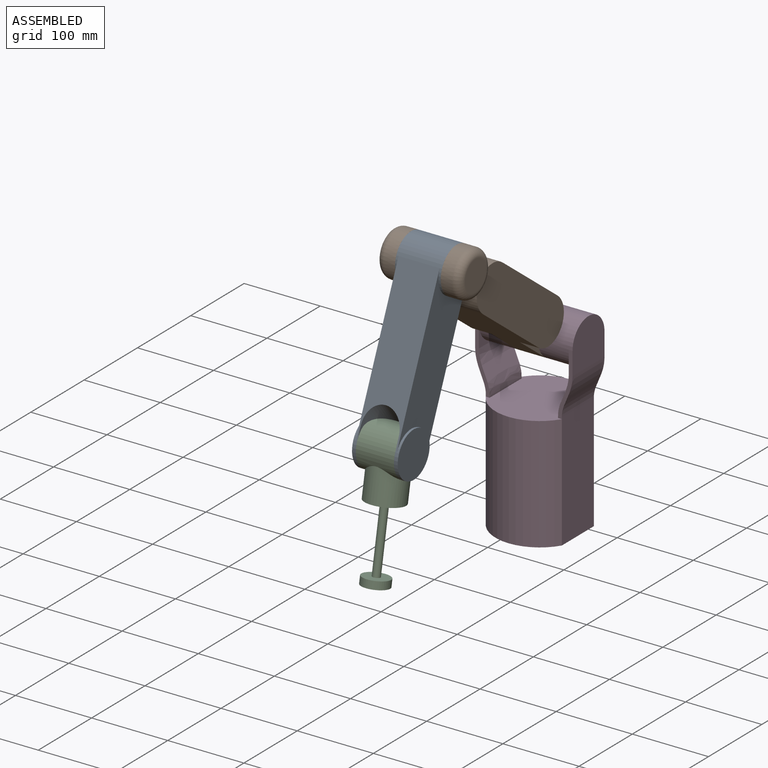
[diagram: assembled view]
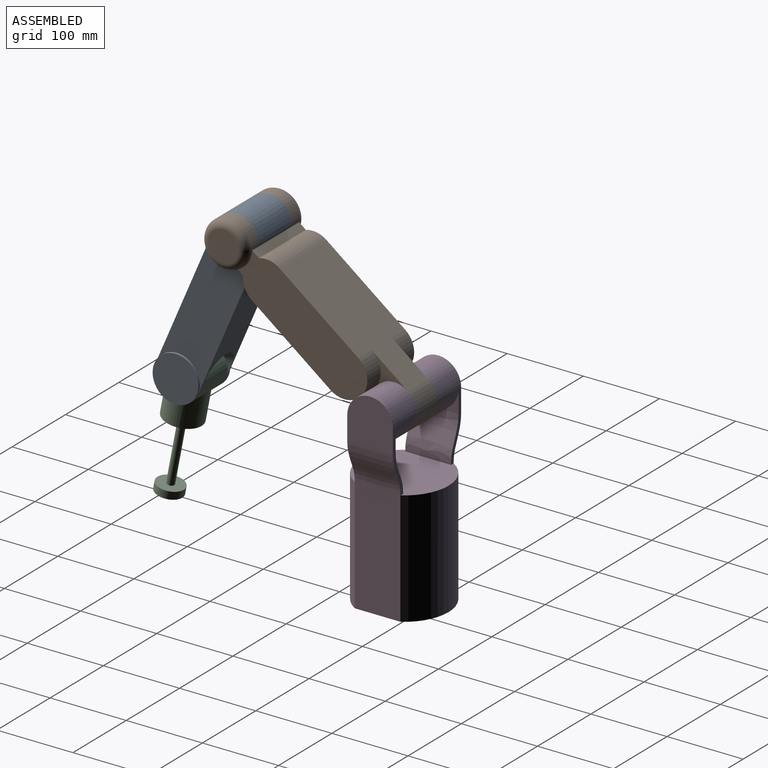
[diagram: assembled view, second angle]
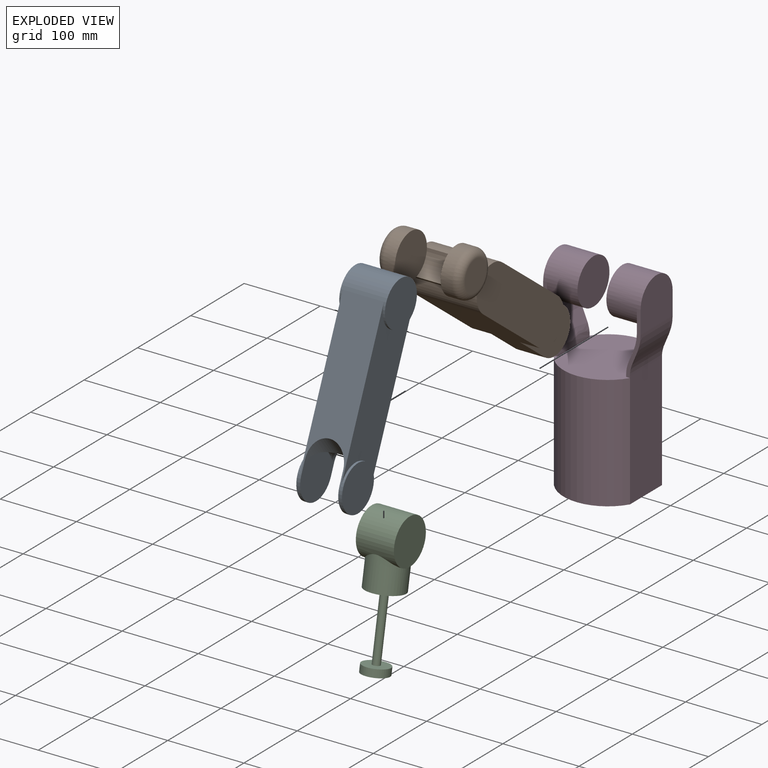
[diagram: exploded view]
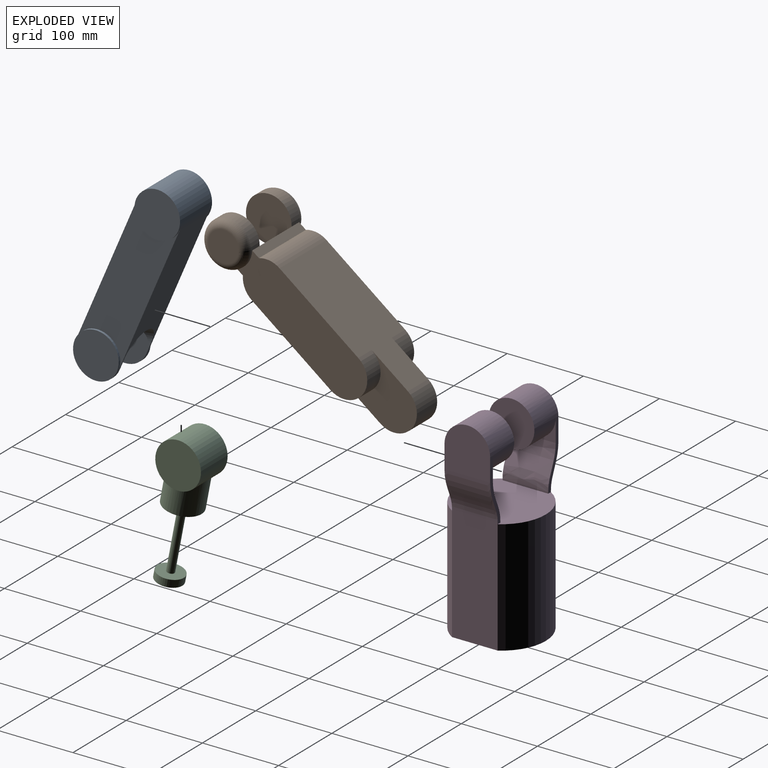
[diagram: exploded view, second angle]
ASSEMBLY  parts=4 mates=3
PART A: 22 faces, bbox 60.1x265.1x86.5 mm
  f0: cylinder r=30mm len=15mm, axis (1,0,0), area 0.3mm2, adj f6,f9,f18
  f1: cylinder r=30mm len=51.96mm, axis (1,0,0), area 933.9mm2, adj f5,f6,f9,f13,f19,f21
  f2: cylinder r=30mm len=15mm, axis (1,0,0), area 0.3mm2, adj f5,f9,f20
  f3: plane 205x54mm, normal (0,0,1), area 9070.7mm2, adj f6,f7,f10,f11,f13,f14,f15,f18
  f4: plane 205x54mm, normal (0,0,-1), area 9070.7mm2, adj f5,f7,f10,f11,f13,f14,f15,f20
  f5: cylinder r=25mm len=50mm, axis (0,-0.5,0.87), area 1577.9mm2, adj f1,f2,f4,f20,f21
  f6: cylinder r=25mm len=50mm, axis (0,-0.5,-0.87), area 1577.9mm2, adj f0,f1,f3,f18,f19
  f7: cylinder r=30mm len=60mm, axis (-1,0,0), area 754mm2, adj f3,f4,f8,f9,f10
  f8: plane 60x60mm, normal (1,0,0), area 2827.4mm2, adj f7
  f9: plane 60x60mm, normal (-1,0,0), area 2827.4mm2, adj f0,f1,f2,f7
  f10: plane 205x60mm, normal (1,0,0), area 9472.6mm2, adj f3,f4,f7,f15
  f11: cylinder r=30mm len=60mm, axis (1,0,0), area 754mm2, adj f3,f4,f12,f13,f14
  f12: plane 60x60mm, normal (-1,0,0), area 2827.4mm2, adj f11
  f13: plane 60x60mm, normal (1,0,0), area 2888.5mm2, adj f1,f3,f4,f11,f19,f21
  f14: plane 205x60mm, normal (-1,0,0), area 9472.6mm2, adj f3,f4,f11,f15
  f15: cylinder r=30mm len=60mm, axis (-1,0,0), area 6220.4mm2, adj f3,f4,f10,f14,f16,f17
  f16: plane 60x60mm, normal (1,0,0), area 2827.4mm2, adj f15
  f17: plane 60x60mm, normal (-1,0,0), area 2827.4mm2, adj f15
  f18: plane 15.81x3.46mm, normal (-1,0,0), area 18.6mm2, adj f0,f3,f6
  f19: extruded ~5.51x1.33mm, area 3.7mm2, adj f1,f6,f13
  f20: plane 15.81x3.46mm, normal (-1,0,0), area 18.6mm2, adj f2,f4,f5
  f21: extruded ~5.51x1.33mm, area 3.7mm2, adj f1,f5,f13
PART B: 22 faces, bbox 110x312.5x64.9 mm
  f0: plane 190x88mm, normal (0,0,-1), area 13720mm2, adj f6,f9,f12,f13,f14,f19,f20,f21
  f1: cylinder r=30mm len=60mm, axis (1,0,0), area 2141.8mm2, adj f4,f8,f10,f17
  f2: cylinder r=30mm len=60mm, axis (-1,0,0), area 2327.7mm2, adj f4,f7,f8,f10,f12
  f3: plane 40x40mm, normal (1,0,0), area 1256.6mm2, adj f7
  f4: plane 60x60mm, normal (-1,0,0), area 2827.4mm2, adj f1,f2
  f5: plane 190x88mm, normal (0,0,1), area 13720mm2, adj f6,f11,f12,f13,f14,f19,f20,f21
  f6: cylinder r=30mm len=60mm, axis (1,0,0), area 3581.4mm2, adj f0,f5,f14,f21
  f7: torus R=20mm, axis (1,0,0), area 2602.2mm2, adj f2,f3
  f8: plane 88x9.52mm, normal (0,0,-1), area 837.5mm2, adj f1,f2,f9,f12,f15,f19
  f9: cylinder r=30mm len=88mm, axis (1,0,0), area 2639.6mm2, adj f0,f8,f12,f19
  f10: plane 88x11.13mm, normal (0,0,1), area 979.5mm2, adj f1,f2,f11,f12,f15,f19
  f11: cylinder r=30mm len=88mm, axis (1,0,0), area 2512.9mm2, adj f5,f10,f12,f19
  f12: plane 195.57x60mm, normal (1,0,0), area 10739.1mm2, adj f0,f2,f5,f8,f9,f10,f11,f13
  f13: cylinder r=30mm len=60mm, axis (1,0,0), area 2356.2mm2, adj f0,f5,f12,f14
  f14: plane 90x60mm, normal (1,0,0), area 3600mm2, adj f0,f5,f6,f13
  f15: cylinder r=30mm len=60mm, axis (1,0,0), area 2327.7mm2, adj f8,f10,f17,f18,f19
  f16: plane 40x40mm, normal (-1,0,0), area 1256.6mm2, adj f18
  f17: plane 60x60mm, normal (1,0,0), area 2827.4mm2, adj f1,f15
  f18: torus R=20mm, axis (-1,0,0), area 2602.2mm2, adj f15,f16
  f19: plane 195.57x60mm, normal (-1,0,0), area 10739.1mm2, adj f0,f5,f8,f9,f10,f11,f15,f20
  f20: cylinder r=30mm len=60mm, axis (-1,0,0), area 2356.2mm2, adj f0,f5,f19,f21
  f21: plane 90x60mm, normal (-1,0,0), area 3600mm2, adj f0,f5,f6,f20
PART C: 9 faces, bbox 50x122.7x173 mm
  f0: cylinder r=5mm len=78.61mm, axis (0,-0.5,-0.87), area 2670.4mm2, adj f5,f8
  f1: cylinder r=30mm len=60mm, axis (-1,0,0), area 7216.8mm2, adj f2,f3,f4
  f2: plane 60x60mm, normal (1,0,0), area 2827.4mm2, adj f1
  f3: plane 60x60mm, normal (-1,0,0), area 2827.4mm2, adj f1
  f4: cylinder r=25mm len=65.01mm, axis (0,-0.5,-0.87), area 5690mm2, adj f1,f5
  f5: plane 50x43.3mm, normal (0,0.5,0.87), area 1885mm2, adj f0,f4
  f6: cylinder r=17.5mm len=35.31mm, axis (0,-0.5,-0.87), area 1099.6mm2, adj f7,f8
  f7: plane 35x30.31mm, normal (0,0.5,0.87), area 962.1mm2, adj f6
  f8: plane 35x30.31mm, normal (0,-0.5,-0.87), area 883.6mm2, adj f0,f6
PART D: 26 faces, bbox 129.1x117.7x265.8 mm
  f0: plane 60.01x60mm, normal (1,0,0), area 3214.5mm2, adj f1,f4,f7,f8
  f1: cylinder r=30mm len=60mm, axis (-1,0,0), area 8011.1mm2, adj f0,f2,f3,f6,f7,f8
  f2: plane 60x60mm, normal (-1,0,0), area 2827.4mm2, adj f1
  f3: plane 30x30mm, normal (-1,0,0), area 193.1mm2, adj f1,f5,f7
  f4: extruded ~60x52.67mm, area 3299.9mm2, adj f0,f7,f8,f9
  f5: extruded ~60x52.81mm, area 3308.2mm2, adj f3,f6,f7,f8,f10
  f6: plane 30x30mm, normal (-1,0,0), area 193.1mm2, adj f1,f5,f8
  f7: plane 85.81x20.27mm, normal (0,1,0), area 434.1mm2, adj f0,f1,f3,f4,f5,f9,f10,f15
  f8: plane 85.81x20.26mm, normal (0,-1,0), area 434.1mm2, adj f0,f1,f4,f5,f6,f9,f10,f15
  f9: plane 152x60mm, normal (1,0,0), area 9120mm2, adj f4,f7,f8,f11,f12,f14
  f10: plane 60x1.87mm, normal (-1,0,0), area 112.4mm2, adj f5,f7,f8,f15
  f11: cylinder r=58.26mm len=150mm, axis (0,0,1), area 18001.5mm2, adj f9,f13,f14,f15
  f12: cylinder r=58.26mm len=150mm, axis (0,0,1), area 18001.5mm2, adj f9,f13,f14,f15
  f13: plane 152x60mm, normal (-1,0,0), area 9120mm2, adj f11,f12,f14,f20,f23,f24
  f14: plane 116.53x99.89mm, normal (0,0,-1), area 9988.9mm2, adj f9,f11,f12,f13
  f15: plane 116.53x99.89mm, normal (0,0,1), area 9389.1mm2, adj f7,f8,f10,f11,f12,f23,f24,f25
  f16: plane 60.01x60mm, normal (-1,0,0), area 3214.5mm2, adj f17,f20,f23,f24
  f17: cylinder r=30mm len=60mm, axis (1,0,0), area 8011.1mm2, adj f16,f18,f19,f22,f23,f24
  f18: plane 60x60mm, normal (1,0,0), area 2827.4mm2, adj f17
  f19: plane 30x30mm, normal (1,0,0), area 193.1mm2, adj f17,f21,f23
  f20: extruded ~60x52.67mm, area 3299.9mm2, adj f13,f16,f23,f24
  f21: extruded ~60x52.81mm, area 3308.2mm2, adj f19,f22,f23,f24,f25
  f22: plane 30x30mm, normal (1,0,0), area 193.1mm2, adj f17,f21,f24
  f23: plane 85.81x20.26mm, normal (0,1,0), area 434.1mm2, adj f13,f15,f16,f17,f19,f20,f21,f25
  f24: plane 85.81x20.27mm, normal (0,-1,0), area 434.1mm2, adj f13,f15,f16,f17,f20,f21,f22,f25
  f25: plane 60x1.87mm, normal (1,0,0), area 112.4mm2, adj f15,f21,f23,f24
PLACE A rot(axis=(1,0,0),66.9deg) t=(0,175.62,-36.94)mm
PLACE B rot(axis=(-1,0,0),37.3deg) t=(0,93.16,275.85)mm
PLACE C rot(axis=(-1,0,0),160.9deg) t=(0,175.62,-36.94)mm
PLACE D at identity fixed
MATE revolute B.f1 <-> A.f15  axis (1,0,0) through (-30,256.18,151.57)mm
MATE revolute C.f1 <-> A.f0  axis (1,0,0) through (25,175.62,-36.94)mm
MATE revolute B.f6 <-> D.f1  axis (1,0,0) through (19,455,0)mm
